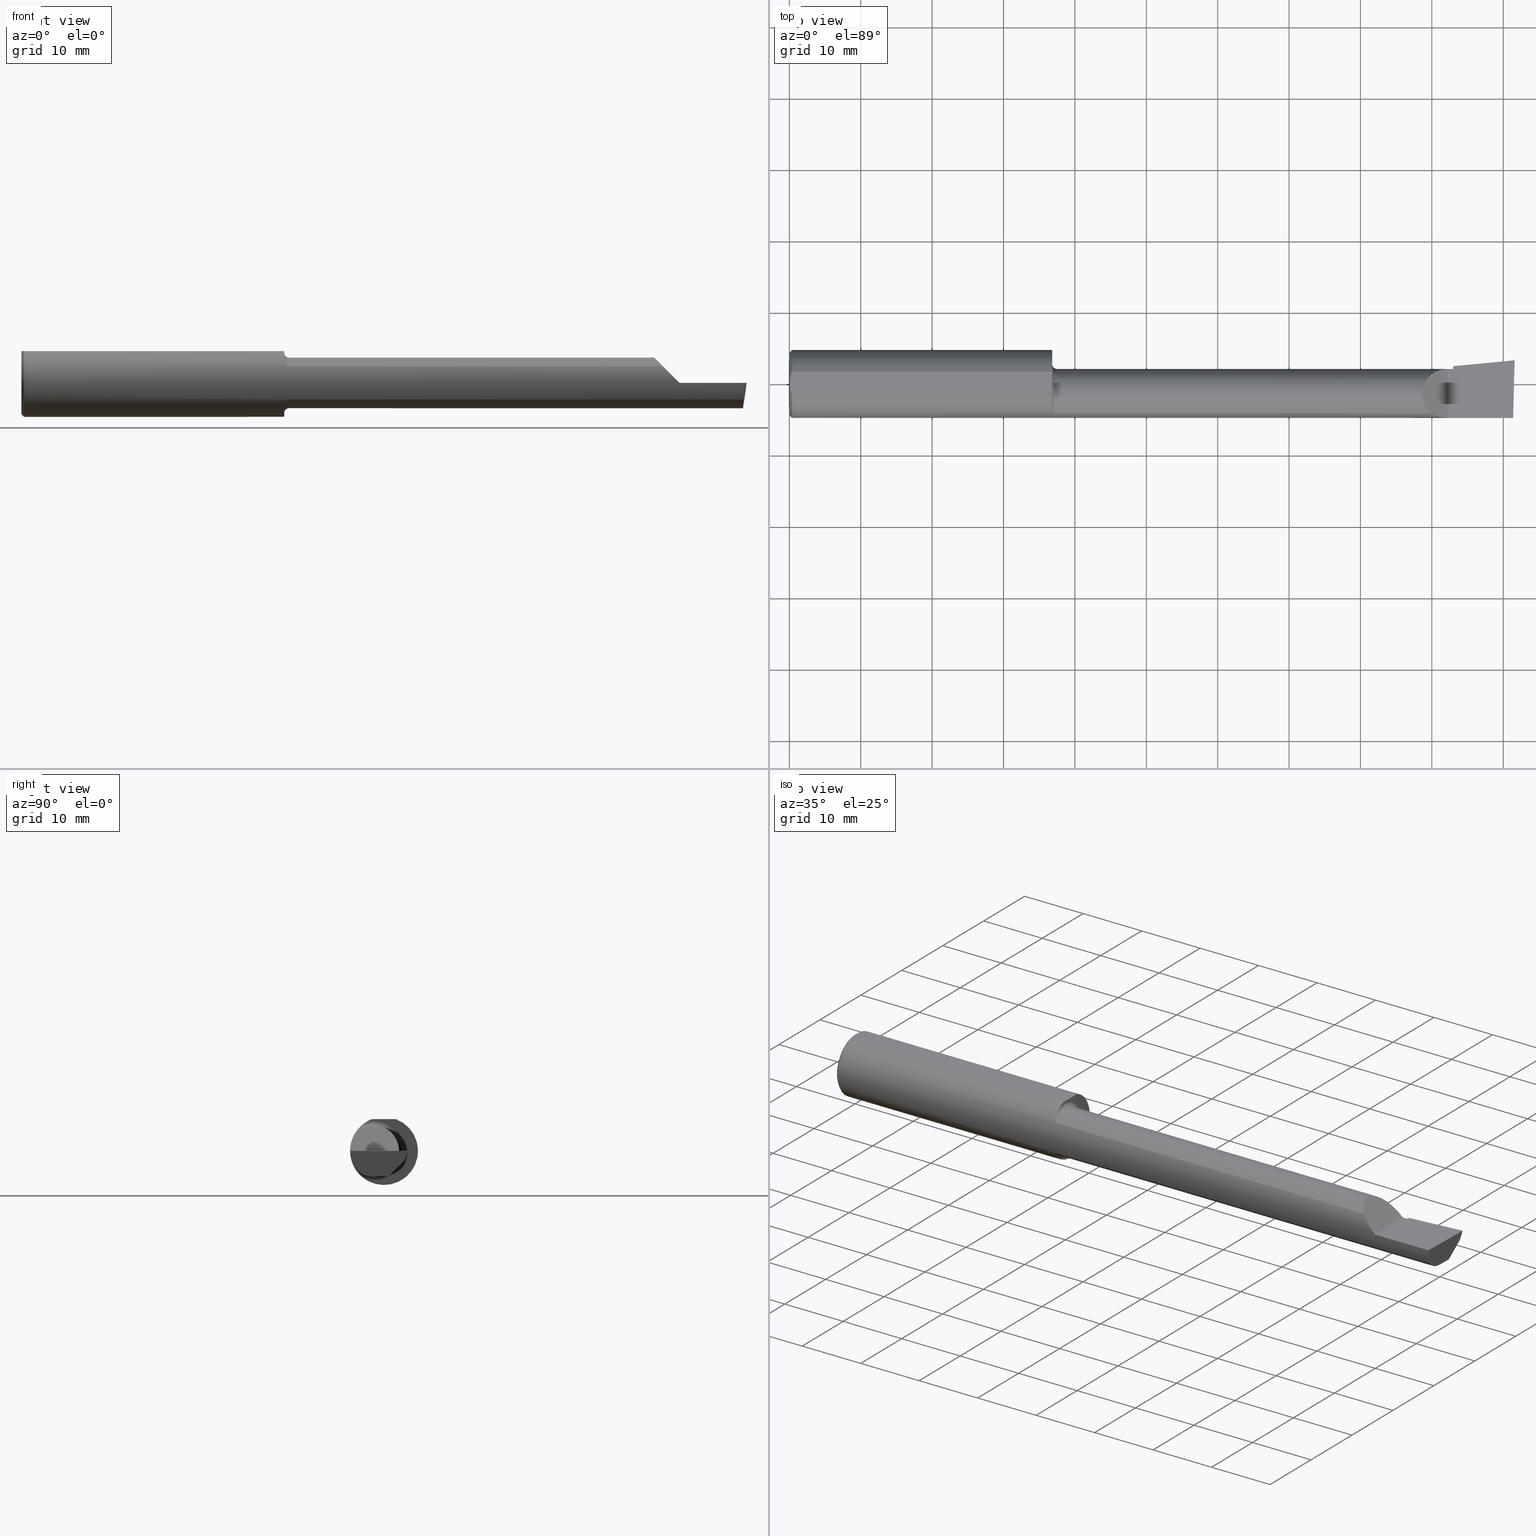
[diagram: canonical four-view strip — front | top / right | iso, engineering-drawing reading convention]
A machine part, canonical four-view strip (front | top / right | iso — engineering-drawing reading convention). The complete STEP part file that produces these views, byte-faithful:
ISO-10303-21;
HEADER;
FILE_DESCRIPTION (( 'STEP AP203' ),
    '1' );
FILE_NAME ('217501-B3202500.STEP',
    '2024-04-26T19:28:02',
    ( '' ),
    ( '' ),
    'SwSTEP 2.0',
    'SolidWorks 2022',
    '' );
FILE_SCHEMA (( 'CONFIG_CONTROL_DESIGN' ));
ENDSEC;

DATA;
#1 = DIRECTION ( 'NONE',  ( 0.000000000000000000, 1.000000000000000000, 0.000000000000000000 ) ) ;
#2 = DIRECTION ( 'NONE',  ( 0.9953961983671800740, 0.09584575252021095004, 2.093702685767902835E-14 ) ) ;
#3 = AXIS2_PLACEMENT_3D ( 'NONE', #585, #342, #493 ) ;
#4 = LINE ( 'NONE', #556, #450 ) ;
#5 = ORIENTED_EDGE ( 'NONE', *, *, #579, .T. ) ;
#6 = DIRECTION ( 'NONE',  ( -0.000000000000000000, 1.000000000000000000, -0.000000000000000000 ) ) ;
#7 = EDGE_CURVE ( 'NONE', #563, #49, #87, .T. ) ;
#8 = LINE ( 'NONE', #465, #642 ) ;
#9 = VERTEX_POINT ( 'NONE', #42 ) ;
#10 = CARTESIAN_POINT ( 'NONE',  ( 3.980058035321255794, 0.02601009779168081751, -0.1400500000000000911 ) ) ;
#11 = EDGE_LOOP ( 'NONE', ( #33, #594, #15 ) ) ;
#12 = CARTESIAN_POINT ( 'NONE',  ( 0.01499999999999997863, -0.06597272163553657975, 0.1753499999999999781 ) ) ;
#13 = AXIS2_PLACEMENT_3D ( 'NONE', #147, #248, #491 ) ;
#14 = DIRECTION ( 'NONE',  ( 0.000000000000000000, -1.438723400918613551E-16, -1.000000000000000000 ) ) ;
#15 = ORIENTED_EDGE ( 'NONE', *, *, #238, .F. ) ;
#16 = DIRECTION ( 'NONE',  ( 1.000000000000000000, 0.000000000000000000, 0.000000000000000000 ) ) ;
#17 = CARTESIAN_POINT ( 'NONE',  ( 3.654666039249971909, 0.01321247140458300766, -0.1209457786867195322 ) ) ;
#18 = ORIENTED_EDGE ( 'NONE', *, *, #404, .F. ) ;
#19 = DIRECTION ( 'NONE',  ( 0.000000000000000000, -1.000000000000000000, 0.000000000000000000 ) ) ;
#20 = VERTEX_POINT ( 'NONE', #494 ) ;
#21 = PERSON_AND_ORGANIZATION_ROLE ( 'creator' ) ;
#22 = CARTESIAN_POINT ( 'NONE',  ( 2.567499999999999893, -0.1635956445993030639, 0.09130436773856169530 ) ) ;
#23 = AXIS2_PLACEMENT_3D ( 'NONE', #399, #215, #1 ) ;
#24 = EDGE_LOOP ( 'NONE', ( #273, #380 ) ) ;
#25 = PERSON_AND_ORGANIZATION ( #90, #307 ) ;
#26 = CARTESIAN_POINT ( 'NONE',  ( 0.008244775919947424855, 0.04453482769755855164, 0.1753499999999999504 ) ) ;
#27 = EDGE_LOOP ( 'NONE', ( #433, #78 ) ) ;
#28 = LENGTH_MEASURE_WITH_UNIT ( LENGTH_MEASURE( 0.02539999999999999897 ), #403 );
#29 = LINE ( 'NONE', #619, #354 ) ;
#30 = DESIGN_CONTEXT ( 'detailed design', #346, 'design' ) ;
#31 = VERTEX_POINT ( 'NONE', #441 ) ;
#32 = LINE ( 'NONE', #239, #567 ) ;
#33 = ORIENTED_EDGE ( 'NONE', *, *, #243, .F. ) ;
#34 = AXIS2_PLACEMENT_3D ( 'NONE', #411, #451, #165 ) ;
#35 = EDGE_CURVE ( 'NONE', #501, #383, #623, .T. ) ;
#36 = LOCAL_TIME ( 12, 28, 2.000000000000000000, #137 ) ;
#37 = CARTESIAN_POINT ( 'NONE',  ( 3.653159806206771165, 0.06582018291673062682, -0.06657020401570151735 ) ) ;
#38 = LINE ( 'NONE', #102, #331 ) ;
#39 = DIRECTION ( 'NONE',  ( -4.268512490100411279E-18, 1.000000000000000000, 0.000000000000000000 ) ) ;
#40 = DIRECTION ( 'NONE',  ( -1.000000000000000000, -4.268512490100411279E-18, -0.000000000000000000 ) ) ;
#41 = LINE ( 'NONE', #388, #487 ) ;
#42 = CARTESIAN_POINT ( 'NONE',  ( 3.659999999999999698, 0.01441505128072246775, -0.1202356058309985848 ) ) ;
#43 = APPROVAL ( #70, 'UNSPECIFIED' ) ;
#44 = CIRCLE ( 'NONE', #401, 0.1400499999999997580 ) ;
#45 = CYLINDRICAL_SURFACE ( 'NONE', #121, 0.1400499999999999801 ) ;
#46 = ADVANCED_FACE ( 'NONE', ( #98 ), #598, .F. ) ;
#47 = DIRECTION ( 'NONE',  ( 1.000000000000000000, 4.268512490100411279E-18, 0.000000000000000000 ) ) ;
#48 = CARTESIAN_POINT ( 'NONE',  ( 3.649559965233992287, 0.06624107758111201505, -0.06577907292278803442 ) ) ;
#49 = VERTEX_POINT ( 'NONE', #536 ) ;
#50 = CARTESIAN_POINT ( 'NONE',  ( 3.538695632261437130, -0.1635956445993028974, 0.09130436773856195898 ) ) ;
#51 = PLANE ( 'NONE',  #34 ) ;
#52 = ADVANCED_FACE ( 'NONE', ( #641 ), #196, .F. ) ;
#53 = AXIS2_PLACEMENT_3D ( 'NONE', #634, #442, #385 ) ;
#54 = APPROVAL_PERSON_ORGANIZATION ( #170, #645, #518 ) ;
#55 = CARTESIAN_POINT ( 'NONE',  ( 3.646634349579650713, 0.09662475785532537165, -6.829619984160658046E-17 ) ) ;
#56 = DIRECTION ( 'NONE',  ( 0.000000000000000000, 1.000000000000000000, -1.438723400918613551E-16 ) ) ;
#57 = ORIENTED_EDGE ( 'NONE', *, *, #359, .F. ) ;
#58 = CARTESIAN_POINT ( 'NONE',  ( 3.659999999999999698, 0.09791172361284120051, -1.402030126304829977E-15 ) ) ;
#59 = CARTESIAN_POINT ( 'NONE',  ( 3.659999999999999698, 0.08255448787293397095, -0.05000000000000000971 ) ) ;
#60 = EDGE_LOOP ( 'NONE', ( #5, #507, #139, #629 ) ) ;
#61 = FACE_OUTER_BOUND ( 'NONE', #466, .T. ) ;
#62 = CARTESIAN_POINT ( 'NONE',  ( 4.000000000000000000, -0.05739999999999999963, -0.1400500000000000633 ) ) ;
#63 = CARTESIAN_POINT ( 'NONE',  ( 3.629999999999999893, -0.2500000000000000555, -1.383850883036508279E-16 ) ) ;
#64 = CIRCLE ( 'NONE', #474, 0.1400500000000002299 ) ;
#65 = CARTESIAN_POINT ( 'NONE',  ( 1.451891754936545098, -0.1247344934163571728, 0.1400506178720497541 ) ) ;
#66 = EDGE_CURVE ( 'NONE', #313, #322, #447, .T. ) ;
#67 = EDGE_LOOP ( 'NONE', ( #267, #513, #276, #603, #520, #213 ) ) ;
#68 = CARTESIAN_POINT ( 'NONE',  ( 3.566758987970638728, -0.1792580844883770730, 0.06324101202936149857 ) ) ;
#69 = ORIENTED_EDGE ( 'NONE', *, *, #524, .F. ) ;
#70 = APPROVAL_STATUS ( 'not_yet_approved' ) ;
#71 = CARTESIAN_POINT ( 'NONE',  ( 3.597861799102314517, -0.1873500000000000165, 0.03213820089768516797 ) ) ;
#72 = ORIENTED_EDGE ( 'NONE', *, *, #648, .F. ) ;
#73 = EDGE_CURVE ( 'NONE', #563, #344, #38, .T. ) ;
#74 = PERSON_AND_ORGANIZATION_ROLE ( 'design_owner' ) ;
#75 = CARTESIAN_POINT ( 'NONE',  ( 0.003000000000000169632, 0.01127363201155560934, 0.1753499999999999781 ) ) ;
#76 = AXIS2_PLACEMENT_3D ( 'NONE', #185, #522, #422 ) ;
#77 = APPROVAL_PERSON_ORGANIZATION ( #129, #639, #529 ) ;
#78 = ORIENTED_EDGE ( 'NONE', *, *, #7, .T. ) ;
#79 = DIRECTION ( 'NONE',  ( -0.1240019227988271994, -0.3022330132596598440, -0.9451342385281468195 ) ) ;
#80 = APPLICATION_CONTEXT ( 'configuration controlled 3d designs of mechanical parts and assemblies' ) ;
#81 = VERTEX_POINT ( 'NONE', #200 ) ;
#82 = CARTESIAN_POINT ( 'NONE',  ( 1.467975941902153192, -0.1612443294219083612, -0.09540922431498155554 ) ) ;
#83 = ADVANCED_FACE ( 'NONE', ( #300 ), #543, .T. ) ;
#84 = ORIENTED_EDGE ( 'NONE', *, *, #630, .T. ) ;
#85 = LINE ( 'NONE', #101, #134 ) ;
#86 = ORIENTED_EDGE ( 'NONE', *, *, #586, .T. ) ;
#87 = CIRCLE ( 'NONE', #462, 0.1723499999999996424 ) ;
#88 = CC_DESIGN_PERSON_AND_ORGANIZATION_ASSIGNMENT ( #431, #74, ( #324 ) ) ;
#89 = CIRCLE ( 'NONE', #23, 0.1873499999999999888 ) ;
#90 = PERSON ( 'UNSPECIFIED', 'UNSPECIFIED', 'UNSPECIFIED', ('UNSPECIFIED'), ('UNSPECIFIED'), ('UNSPECIFIED') ) ;
#91 = LOCAL_TIME ( 12, 28, 2.000000000000000000, #178 ) ;
#92 = DIRECTION ( 'NONE',  ( 4.268512490100411279E-18, -1.000000000000000000, 0.000000000000000000 ) ) ;
#93 = ORIENTED_EDGE ( 'NONE', *, *, #495, .F. ) ;
#94 = CARTESIAN_POINT ( 'NONE',  ( 2.047026079080032090, -0.05740000000000000657, 4.132328855998353457E-20 ) ) ;
#95 = VERTEX_POINT ( 'NONE', #205 ) ;
#96 = ADVANCED_FACE ( 'NONE', ( #395 ), #601, .T. ) ;
#97 = PLANE ( 'NONE',  #53 ) ;
#98 = FACE_OUTER_BOUND ( 'NONE', #423, .T. ) ;
#99 = AXIS2_PLACEMENT_3D ( 'NONE', #62, #209, #356 ) ;
#100 = CONICAL_SURFACE ( 'NONE', #452, 0.1873499999999999888, 0.7853981633974602694 ) ;
#101 = CARTESIAN_POINT ( 'NONE',  ( 3.990039159128060398, -0.2497391662021650749, -1.698694533788567331E-16 ) ) ;
#102 = CARTESIAN_POINT ( 'NONE',  ( 0.01499999999999999424, 2.294375778202566330E-17, 0.1873499999999999888 ) ) ;
#103 = DIRECTION ( 'NONE',  ( -1.000000000000000000, 0.000000000000000000, 8.744705756855574331E-17 ) ) ;
#104 = CARTESIAN_POINT ( 'NONE',  ( 3.650743536083989937, 0.05394922433140202089, -0.08888335082963766398 ) ) ;
#105 = EDGE_CURVE ( 'NONE', #221, #479, #455, .T. ) ;
#106 = CARTESIAN_POINT ( 'NONE',  ( 4.000000000000000000, -0.2500000000000000555, -1.707404996040164512E-16 ) ) ;
#107 = LINE ( 'NONE', #461, #186 ) ;
#108 = ORIENTED_EDGE ( 'NONE', *, *, #148, .T. ) ;
#109 = AXIS2_PLACEMENT_3D ( 'NONE', #288, #190, #338 ) ;
#110 =( BOUNDED_CURVE ( )  B_SPLINE_CURVE ( 3, ( #615, #161, #405, #512 ),
 .UNSPECIFIED., .F., .F. ) 
 B_SPLINE_CURVE_WITH_KNOTS ( ( 4, 4 ),
 ( 3.403716554974003383, 3.413688882750588238 ),
 .UNSPECIFIED. ) 
 CURVE ( )  GEOMETRIC_REPRESENTATION_ITEM ( )  RATIONAL_B_SPLINE_CURVE ( ( 1.000000000000000000, 0.9999917127403961103, 0.9999917127403961103, 1.000000000000000000 ) ) 
 REPRESENTATION_ITEM ( '' )  );
#111 = CC_DESIGN_APPROVAL ( #639, ( #591 ) ) ;
#112 = CARTESIAN_POINT ( 'NONE',  ( 0.000000000000000000, 0.000000000000000000, 0.000000000000000000 ) ) ;
#113 = FACE_OUTER_BOUND ( 'NONE', #235, .T. ) ;
#114 = EDGE_LOOP ( 'NONE', ( #523, #237, #261, #638 ) ) ;
#115 = LINE ( 'NONE', #407, #231 ) ;
#116 = CARTESIAN_POINT ( 'NONE',  ( 0.01128414053810044941, -0.05542038647445821781, 0.1753499999999999781 ) ) ;
#117 = EDGE_CURVE ( 'NONE', #177, #497, #4, .T. ) ;
#118 = DIRECTION ( 'NONE',  ( 0.06658005426110566449, -0.6914603011188222847, -0.7193398003386548556 ) ) ;
#119 = ORIENTED_EDGE ( 'NONE', *, *, #330, .T. ) ;
#120 = CALENDAR_DATE ( 2024, 26, 4 ) ;
#121 = AXIS2_PLACEMENT_3D ( 'NONE', #149, #535, #92 ) ;
#122 = DIRECTION ( 'NONE',  ( -1.000000000000000000, -4.268512490100411279E-18, -0.000000000000000000 ) ) ;
#123 = LOCAL_TIME ( 12, 28, 2.000000000000000000, #428 ) ;
#124 = MANIFOLD_SOLID_BREP ( 'Extrude7', #555 ) ;
#125 = PERSON_AND_ORGANIZATION ( #90, #307 ) ;
#126 = PLANE ( 'NONE',  #76 ) ;
#127 = VERTEX_POINT ( 'NONE', #310 ) ;
#128 = EDGE_CURVE ( 'NONE', #49, #456, #8, .T. ) ;
#129 = PERSON_AND_ORGANIZATION ( #90, #307 ) ;
#130 = DIRECTION ( 'NONE',  ( 4.268512490100411279E-18, -1.000000000000000000, 1.438723400918613551E-16 ) ) ;
#131 = ORIENTED_EDGE ( 'NONE', *, *, #351, .F. ) ;
#132 = DATE_AND_TIME ( #269, #123 ) ;
#133 = CARTESIAN_POINT ( 'NONE',  ( 1.450384441902395238, -0.1115101367984843439, -0.1507946173152220348 ) ) ;
#134 = VECTOR ( 'NONE', #499, 39.37007874015748854 ) ;
#135 = CC_DESIGN_APPROVAL ( #645, ( #621 ) ) ;
#136 = VERTEX_POINT ( 'NONE', #169 ) ;
#137 = COORDINATED_UNIVERSAL_TIME_OFFSET ( 8, 0, .BEHIND. ) ;
#138 = LINE ( 'NONE', #234, #633 ) ;
#139 = ORIENTED_EDGE ( 'NONE', *, *, #359, .T. ) ;
#140 = CARTESIAN_POINT ( 'NONE',  ( 3.659999999999999698, -0.05739999999999999963, 0.000000000000000000 ) ) ;
#141 = ORIENTED_EDGE ( 'NONE', *, *, #128, .F. ) ;
#142 = DIRECTION ( 'NONE',  ( -0.1053106618240638032, -0.6976485211320200275, -0.7086580314005359593 ) ) ;
#143 = DIRECTION ( 'NONE',  ( 0.000000000000000000, 0.000000000000000000, 1.000000000000000000 ) ) ;
#144 = AXIS2_PLACEMENT_3D ( 'NONE', #251, #2, #398 ) ;
#145 = AXIS2_PLACEMENT_3D ( 'NONE', #112, #265, #460 ) ;
#146 = LINE ( 'NONE', #94, #412 ) ;
#147 = CARTESIAN_POINT ( 'NONE',  ( 3.629999999999999893, -0.2500000000000000555, -1.383850883036508279E-16 ) ) ;
#148 = EDGE_CURVE ( 'NONE', #127, #253, #492, .T. ) ;
#149 = CARTESIAN_POINT ( 'NONE',  ( 0.000000000000000000, -0.05740000000000001351, 0.000000000000000000 ) ) ;
#150 = CARTESIAN_POINT ( 'NONE',  ( 3.659999999999999698, 0.09791172361283663472, 0.000000000000000000 ) ) ;
#151 = CARTESIAN_POINT ( 'NONE',  ( 3.659999999999999698, -0.004807985797372692910, -0.1400500000000000633 ) ) ;
#152 = ORIENTED_EDGE ( 'NONE', *, *, #470, .F. ) ;
#153 = VECTOR ( 'NONE', #608, 39.37007874015748854 ) ;
#154 = CARTESIAN_POINT ( 'NONE',  ( 3.421229036482944075, -0.06260079402492414735, 0.2087709635170538203 ) ) ;
#155 = ORIENTED_EDGE ( 'NONE', *, *, #330, .F. ) ;
#156 =( BOUNDED_CURVE ( )  B_SPLINE_CURVE ( 3, ( #48, #37, #637, #192 ),
 .UNSPECIFIED., .F., .T. ) 
 B_SPLINE_CURVE_WITH_KNOTS ( ( 4, 4 ),
 ( 2.860273215522871393, 2.879468752205587290 ),
 .UNSPECIFIED. ) 
 CURVE ( )  GEOMETRIC_REPRESENTATION_ITEM ( )  RATIONAL_B_SPLINE_CURVE ( ( 1.000000000000000000, 0.9999692945166647196, 0.9999692945166647196, 1.000000000000000000 ) ) 
 REPRESENTATION_ITEM ( '' )  );
#157 = EDGE_CURVE ( 'NONE', #127, #253, #562, .T. ) ;
#158 = CARTESIAN_POINT ( 'NONE',  ( 1.450000000000000178, -0.1045012500212958440, 0.1557348687830031608 ) ) ;
#159 = ORIENTED_EDGE ( 'NONE', *, *, #73, .F. ) ;
#160 = DIRECTION ( 'NONE',  ( 1.000000000000000000, 0.000000000000000000, 0.000000000000000000 ) ) ;
#161 = CARTESIAN_POINT ( 'NONE',  ( 3.658254417281638915, 0.01401537333401193727, -0.1204743278970653309 ) ) ;
#162 = ORIENTED_EDGE ( 'NONE', *, *, #217, .F. ) ;
#163 = CONICAL_SURFACE ( 'NONE', #620, 0.1873499999999999888, 0.7853981633974602694 ) ;
#164 = CARTESIAN_POINT ( 'NONE',  ( 3.981080296960509468, -0.1635956445993030639, -0.09130436773856169530 ) ) ;
#165 = DIRECTION ( 'NONE',  ( 0.000000000000000000, 0.000000000000000000, -1.000000000000000000 ) ) ;
#166 = ORIENTED_EDGE ( 'NONE', *, *, #511, .F. ) ;
#167 = EDGE_CURVE ( 'NONE', #482, #285, #305, .T. ) ;
#168 = LINE ( 'NONE', #360, #578 ) ;
#169 = CARTESIAN_POINT ( 'NONE',  ( 3.977873865042411250, -0.05739999999999999963, -0.1400500000000000633 ) ) ;
#170 = PERSON_AND_ORGANIZATION ( #90, #307 ) ;
#171 = CARTESIAN_POINT ( 'NONE',  ( 3.629999999999999893, -0.1873499999999999888, -1.383850883036508279E-16 ) ) ;
#172 = CIRCLE ( 'NONE', #516, 0.1873499999999999888 ) ;
#173 = CALENDAR_DATE ( 2024, 26, 4 ) ;
#174 = PRODUCT_DEFINITION_FORMATION_WITH_SPECIFIED_SOURCE ( 'ANY', '', #324, .NOT_KNOWN. ) ;
#175 = ADVANCED_FACE ( 'NONE', ( #605 ), #51, .F. ) ;
#176 = DIRECTION ( 'NONE',  ( -1.000000000000000000, 5.691349986800549142E-18, -0.000000000000000000 ) ) ;
#177 = VERTEX_POINT ( 'NONE', #304 ) ;
#178 = COORDINATED_UNIVERSAL_TIME_OFFSET ( 8, 0, .BEHIND. ) ;
#179 = CARTESIAN_POINT ( 'NONE',  ( 3.629999999999999893, 0.08264999999999983471, -1.383850883036508279E-16 ) ) ;
#180 = ORIENTED_EDGE ( 'NONE', *, *, #541, .T. ) ;
#181 = PERSON_AND_ORGANIZATION ( #90, #307 ) ;
#182 = FACE_OUTER_BOUND ( 'NONE', #560, .T. ) ;
#183 = ORIENTED_EDGE ( 'NONE', *, *, #579, .F. ) ;
#184 = CARTESIAN_POINT ( 'NONE',  ( 0.000000000000000000, 0.000000000000000000, 0.000000000000000000 ) ) ;
#185 = CARTESIAN_POINT ( 'NONE',  ( 3.648099498941296481, 0.08140859995291782614, -0.05000000000000002359 ) ) ;
#186 = VECTOR ( 'NONE', #505, 39.37007874015748143 ) ;
#187 = APPROVAL_PERSON_ORGANIZATION ( #125, #43, #580 ) ;
#188 = ORIENTED_EDGE ( 'NONE', *, *, #73, .T. ) ;
#189 = ADVANCED_FACE ( 'NONE', ( #559 ), #266, .F. ) ;
#190 = DIRECTION ( 'NONE',  ( -1.000000000000000000, -4.268512490100411279E-18, 0.000000000000000000 ) ) ;
#191 = ORIENTED_EDGE ( 'NONE', *, *, #378, .T. ) ;
#192 = CARTESIAN_POINT ( 'NONE',  ( 3.659999999999999698, 0.06495571228477967085, -0.06814016562413281741 ) ) ;
#193 = VERTEX_POINT ( 'NONE', #551 ) ;
#194 = CARTESIAN_POINT ( 'NONE',  ( 1.450000000000000178, 0.06597272163553663527, 0.1753499999999999781 ) ) ;
#195 = EDGE_CURVE ( 'NONE', #9, #253, #110, .T. ) ;
#196 = PLANE ( 'NONE',  #13 ) ;
#197 = AXIS2_PLACEMENT_3D ( 'NONE', #55, #204, #254 ) ;
#198 = DIMENSIONAL_EXPONENTS ( 1.000000000000000000, 0.000000000000000000, 0.000000000000000000, 0.000000000000000000, 0.000000000000000000, 0.000000000000000000, 0.000000000000000000 ) ;
#199 = CARTESIAN_POINT ( 'NONE',  ( 3.659999999999999698, 0.06495571228477967085, -0.06814016562413281741 ) ) ;
#200 = CARTESIAN_POINT ( 'NONE',  ( 1.450000000000000178, -0.06597272163553666302, 0.1753499999999999781 ) ) ;
#201 = DIRECTION ( 'NONE',  ( -1.000000000000000000, -0.000000000000000000, -0.000000000000000000 ) ) ;
#202 = DIRECTION ( 'NONE',  ( 4.268512490100411279E-18, -1.000000000000000000, 0.000000000000000000 ) ) ;
#203 = EDGE_CURVE ( 'NONE', #430, #406, #107, .T. ) ;
#204 = DIRECTION ( 'NONE',  ( 0.09165774897393337561, -0.9519021185660612172, 0.2923717047227311627 ) ) ;
#205 = CARTESIAN_POINT ( 'NONE',  ( 3.538695632261437130, -0.1635956445993028974, 0.09130436773856195898 ) ) ;
#206 = VECTOR ( 'NONE', #47, 39.37007874015748143 ) ;
#207 = CC_DESIGN_APPROVAL ( #43, ( #174 ) ) ;
#208 = ADVANCED_FACE ( 'NONE', ( #113 ), #458, .F. ) ;
#209 = DIRECTION ( 'NONE',  ( -4.858719700838190352E-34, -8.537024980200823790E-17, 1.000000000000000000 ) ) ;
#210 = ORIENTED_EDGE ( 'NONE', *, *, #283, .F. ) ;
#211 = PLANE ( 'NONE',  #489 ) ;
#212 = CARTESIAN_POINT ( 'NONE',  ( 1.453025912205683667, -0.1310442973014118717, 0.1341609063345039488 ) ) ;
#213 = ORIENTED_EDGE ( 'NONE', *, *, #521, .F. ) ;
#214 = CC_DESIGN_PERSON_AND_ORGANIZATION_ASSIGNMENT ( #614, #21, ( #174 ) ) ;
#215 = DIRECTION ( 'NONE',  ( 1.000000000000000000, 4.268512490100411279E-18, 0.000000000000000000 ) ) ;
#216 = DIRECTION ( 'NONE',  ( 0.000000000000000000, 1.000000000000000000, 8.537024980200821325E-17 ) ) ;
#217 = EDGE_CURVE ( 'NONE', #81, #482, #172, .T. ) ;
#218 = ORIENTED_EDGE ( 'NONE', *, *, #157, .F. ) ;
#219 = FACE_OUTER_BOUND ( 'NONE', #571, .T. ) ;
#220 = DIRECTION ( 'NONE',  ( 1.000000000000000000, 4.268512490100411279E-18, 0.000000000000000000 ) ) ;
#221 = VERTEX_POINT ( 'NONE', #59 ) ;
#222 = MECHANICAL_CONTEXT ( 'NONE', #80, 'mechanical' ) ;
#223 = CARTESIAN_POINT ( 'NONE',  ( 1.466855994529494112, -0.1603175578889972364, 0.09696363432848399688 ) ) ;
#224 = ORIENTED_EDGE ( 'NONE', *, *, #308, .F. ) ;
#225 = APPROVAL_DATE_TIME ( #132, #639 ) ;
#226 = CARTESIAN_POINT ( 'NONE',  ( 1.458068207442170250, -0.1478915270140213900, -0.1153063024254919050 ) ) ;
#227 = ORIENTED_EDGE ( 'NONE', *, *, #203, .F. ) ;
#228 = AXIS2_PLACEMENT_3D ( 'NONE', #490, #589, #547 ) ;
#229 = PERSON_AND_ORGANIZATION_ROLE ( 'design_supplier' ) ;
#230 = EDGE_CURVE ( 'NONE', #459, #95, #595, .T. ) ;
#231 = VECTOR ( 'NONE', #457, 39.37007874015748143 ) ;
#232 = CARTESIAN_POINT ( 'NONE',  ( 3.654666039249971909, 0.01321247140458300766, -0.1209457786867195322 ) ) ;
#233 = ORIENTED_EDGE ( 'NONE', *, *, #167, .T. ) ;
#234 = CARTESIAN_POINT ( 'NONE',  ( 3.993291301099662238, 0.1142987190042920043, -0.05113324764279862655 ) ) ;
#235 = EDGE_LOOP ( 'NONE', ( #439, #227, #647, #72, #517 ) ) ;
#236 = CARTESIAN_POINT ( 'NONE',  ( 3.538695632261437130, -0.1635956445993028974, 0.09130436773856195898 ) ) ;
#237 = ORIENTED_EDGE ( 'NONE', *, *, #299, .T. ) ;
#238 = EDGE_CURVE ( 'NONE', #9, #177, #546, .T. ) ;
#239 = CARTESIAN_POINT ( 'NONE',  ( 4.000000000000000000, -0.05739999999999999963, -0.1400500000000000633 ) ) ;
#240 = ORIENTED_EDGE ( 'NONE', *, *, #404, .T. ) ;
#241 = CARTESIAN_POINT ( 'NONE',  ( 3.981080296960509468, -0.1635956445993030639, -0.09130436773856169530 ) ) ;
#242 = DIRECTION ( 'NONE',  ( -1.000000000000000000, -4.268512490100411279E-18, 0.000000000000000000 ) ) ;
#243 = EDGE_CURVE ( 'NONE', #497, #9, #575, .T. ) ;
#244 = DIRECTION ( 'NONE',  ( -1.000000000000000000, -0.000000000000000000, -0.000000000000000000 ) ) ;
#245 = CARTESIAN_POINT ( 'NONE',  ( 1.474999999999999867, -0.05740000000000001351, 0.000000000000000000 ) ) ;
#246 =( BOUNDED_CURVE ( )  B_SPLINE_CURVE ( 3, ( #50, #154, #611, #561 ),
 .UNSPECIFIED., .F., .F. ) 
 B_SPLINE_CURVE_WITH_KNOTS ( ( 4, 4 ),
 ( 5.422530673488459740, 7.853981633974483678 ),
 .UNSPECIFIED. ) 
 CURVE ( )  GEOMETRIC_REPRESENTATION_ITEM ( )  RATIONAL_B_SPLINE_CURVE ( ( 1.000000000000000000, 0.5651045289226863666, 0.5651045289226863666, 1.000000000000000000 ) ) 
 REPRESENTATION_ITEM ( '' )  );
#247 = DIRECTION ( 'NONE',  ( -1.000000000000000000, -0.000000000000000000, -0.000000000000000000 ) ) ;
#248 = DIRECTION ( 'NONE',  ( -0.7071067811865443531, 0.000000000000000000, -0.7071067811865507924 ) ) ;
#249 = VECTOR ( 'NONE', #244, 39.37007874015748143 ) ;
#250 = CARTESIAN_POINT ( 'NONE',  ( 3.993439983562941720, 0.1146611065212079783, -0.05000000000000002359 ) ) ;
#251 = CARTESIAN_POINT ( 'NONE',  ( 3.652201917153905963, 0.03880335782617686663, -0.1900000000000001132 ) ) ;
#252 = DIRECTION ( 'NONE',  ( 0.000000000000000000, -1.000000000000000000, 0.000000000000000000 ) ) ;
#253 = VERTEX_POINT ( 'NONE', #232 ) ;
#254 = DIRECTION ( 'NONE',  ( 0.000000000000000000, -0.2936076258024069019, -0.9559260233253794592 ) ) ;
#255 = CARTESIAN_POINT ( 'NONE',  ( 1.468001859868116821, -0.1612625562479374497, 0.09537826053888119604 ) ) ;
#256 = CIRCLE ( 'NONE', #228, 0.1650499999999997802 ) ;
#257 = ORIENTED_EDGE ( 'NONE', *, *, #618, .T. ) ;
#258 = DIRECTION ( 'NONE',  ( 0.9953961983671800740, 0.09584575252021031166, 1.093478026937438279E-17 ) ) ;
#259 = DIRECTION ( 'NONE',  ( 0.000000000000000000, 1.000000000000000000, 0.000000000000000000 ) ) ;
#260 = CC_DESIGN_PERSON_AND_ORGANIZATION_ASSIGNMENT ( #181, #574, ( #621 ) ) ;
#261 = ORIENTED_EDGE ( 'NONE', *, *, #217, .T. ) ;
#262 = DIRECTION ( 'NONE',  ( 0.000000000000000000, 0.000000000000000000, -1.000000000000000000 ) ) ;
#263 = CARTESIAN_POINT ( 'NONE',  ( 1.450000000000000178, -0.09715400696864165409, 0.1601908905959921192 ) ) ;
#264 = ORIENTED_EDGE ( 'NONE', *, *, #345, .F. ) ;
#265 = DIRECTION ( 'NONE',  ( -1.000000000000000000, -0.000000000000000000, -0.000000000000000000 ) ) ;
#266 = PLANE ( 'NONE',  #99 ) ;
#267 = ORIENTED_EDGE ( 'NONE', *, *, #396, .F. ) ;
#268 = VECTOR ( 'NONE', #627, 39.37007874015748143 ) ;
#269 = CALENDAR_DATE ( 2024, 26, 4 ) ;
#270 = CARTESIAN_POINT ( 'NONE',  ( 1.462204638458736827, -0.1550630761760526943, 0.1052254855377557363 ) ) ;
#271 = DATE_AND_TIME ( #464, #343 ) ;
#272 = DIRECTION ( 'NONE',  ( 0.000000000000000000, -1.000000000000000000, 0.000000000000000000 ) ) ;
#273 = ORIENTED_EDGE ( 'NONE', *, *, #157, .T. ) ;
#274 = DATE_AND_TIME ( #335, #36 ) ;
#275 = DIRECTION ( 'NONE',  ( -1.000000000000000000, -4.268512490100411279E-18, -0.000000000000000000 ) ) ;
#276 = ORIENTED_EDGE ( 'NONE', *, *, #448, .F. ) ;
#277 = VECTOR ( 'NONE', #118, 39.37007874015748143 ) ;
#278 = APPROVAL_DATE_TIME ( #274, #43 ) ;
#279 = CARTESIAN_POINT ( 'NONE',  ( 0.004115035183746292881, 0.02255629470626744487, 0.1753499999999999781 ) ) ;
#280 = ORIENTED_EDGE ( 'NONE', *, *, #345, .T. ) ;
#281 = CC_DESIGN_DATE_AND_TIME_ASSIGNMENT ( #271, #332, ( #621 ) ) ;
#282 = APPLICATION_PROTOCOL_DEFINITION ( 'international standard', 'config_control_design', 1994, #346 ) ;
#283 = EDGE_CURVE ( 'NONE', #285, #95, #426, .T. ) ;
#284 = CARTESIAN_POINT ( 'NONE',  ( 1.450000000000000178, 0.2373500000000000332, 0.1753499999999999504 ) ) ;
#285 = VERTEX_POINT ( 'NONE', #321 ) ;
#286 = DIRECTION ( 'NONE',  ( -0.02617694830779360160, -0.9996573249755593693, -8.492548844487341413E-17 ) ) ;
#287 = ORIENTED_EDGE ( 'NONE', *, *, #425, .F. ) ;
#288 = CARTESIAN_POINT ( 'NONE',  ( 3.659999999999999698, 0.09791172361283663472, 0.000000000000000000 ) ) ;
#289 = CIRCLE ( 'NONE', #588, 0.1873499999999999888 ) ;
#290 = CARTESIAN_POINT ( 'NONE',  ( 3.991672876940992154, -0.1873499999999999888, -1.700367819150454743E-16 ) ) ;
#291 = ADVANCED_FACE ( 'NONE', ( #432 ), #126, .F. ) ;
#292 = ORIENTED_EDGE ( 'NONE', *, *, #378, .F. ) ;
#293 = CARTESIAN_POINT ( 'NONE',  ( 1.450000000000000178, 0.1076499999999997736, 0.000000000000000000 ) ) ;
#294 = CARTESIAN_POINT ( 'NONE',  ( 0.000000000000000000, 0.000000000000000000, 0.000000000000000000 ) ) ;
#295 = CARTESIAN_POINT ( 'NONE',  ( 3.991672876940992154, -0.1873499999999999888, -1.700367819150454743E-16 ) ) ;
#296 = ORIENTED_EDGE ( 'NONE', *, *, #448, .T. ) ;
#297 = AXIS2_PLACEMENT_3D ( 'NONE', #245, #40, #202 ) ;
#298 = DIRECTION ( 'NONE',  ( 0.000000000000000000, 0.000000000000000000, 1.000000000000000000 ) ) ;
#299 = EDGE_CURVE ( 'NONE', #406, #81, #624, .T. ) ;
#300 = FACE_OUTER_BOUND ( 'NONE', #24, .T. ) ;
#301 = CYLINDRICAL_SURFACE ( 'NONE', #145, 0.1873499999999999888 ) ;
#302 = CARTESIAN_POINT ( 'NONE',  ( 1.456142321956750862, -0.1426151417460934934, 0.1217894822571228691 ) ) ;
#303 = DIRECTION ( 'NONE',  ( -1.000000000000000000, -4.268512490100411279E-18, -0.000000000000000000 ) ) ;
#304 = CARTESIAN_POINT ( 'NONE',  ( 3.659999999999999698, -0.05739999999999999963, -0.1400500000000000633 ) ) ;
#305 = B_SPLINE_CURVE_WITH_KNOTS ( 'NONE', 3,
 ( #263, #158, #316, #65, #212, #302, #358, #270, #408, #223, #255, #420, #361, #312 ),
 .UNSPECIFIED., .F., .F.,
 ( 4, 2, 2, 2, 2, 2, 4 ),
 ( 0.0002471551878304273061, 0.0008987327522055692762, 0.001550310316580711355, 0.002201887880955853000, 0.002527676663143422955, 0.002690571054237208149, 0.002853465445330993343 ),
 .UNSPECIFIED. ) ;
#306 = VECTOR ( 'NONE', #6, 39.37007874015748143 ) ;
#307 = ORGANIZATION ( 'UNSPECIFIED', 'UNSPECIFIED', '' ) ;
#308 = EDGE_CURVE ( 'NONE', #285, #527, #44, .T. ) ;
#309 = LINE ( 'NONE', #552, #600 ) ;
#310 = CARTESIAN_POINT ( 'NONE',  ( 3.649559965233992287, 0.06624107758111201505, -0.06577907292278803442 ) ) ;
#311 = DIRECTION ( 'NONE',  ( -1.000000000000000000, -0.000000000000000000, -0.000000000000000000 ) ) ;
#312 = CARTESIAN_POINT ( 'NONE',  ( 1.474999999999999867, -0.1635956445993032859, 0.09130436773856114019 ) ) ;
#313 = VERTEX_POINT ( 'NONE', #179 ) ;
#314 = CARTESIAN_POINT ( 'NONE',  ( 0.004093196532652216939, -0.02240707710020816909, 0.1753499999999999504 ) ) ;
#315 = ADVANCED_FACE ( 'NONE', ( #182 ), #163, .T. ) ;
#316 = CARTESIAN_POINT ( 'NONE',  ( 1.450383728133729955, -0.1114837668894155670, 0.1508119329971093214 ) ) ;
#317 = ORIENTED_EDGE ( 'NONE', *, *, #238, .T. ) ;
#318 = VECTOR ( 'NONE', #247, 39.37007874015748143 ) ;
#319 = AXIS2_PLACEMENT_3D ( 'NONE', #558, #311, #510 ) ;
#320 = DATE_AND_TIME ( #120, #506 ) ;
#321 = CARTESIAN_POINT ( 'NONE',  ( 1.474999999999999867, -0.1635956445993032859, 0.09130436773856114019 ) ) ;
#322 = VERTEX_POINT ( 'NONE', #572 ) ;
#323 = APPLICATION_PROTOCOL_DEFINITION ( 'international standard', 'config_control_design', 1994, #80 ) ;
#324 = PRODUCT ( '217501-B3202500', '217501-B3202500', '', ( #222 ) ) ;
#325 = CARTESIAN_POINT ( 'NONE',  ( 1.474999999999999867, -0.05740000000000000657, 0.000000000000000000 ) ) ;
#326 = ORIENTED_EDGE ( 'NONE', *, *, #586, .F. ) ;
#327 = DATE_TIME_ROLE ( 'creation_date' ) ;
#328 = CARTESIAN_POINT ( 'NONE',  ( 1.470881499230869860, -0.1628722075910995493, -0.09260290410947796813 ) ) ;
#329 = ORIENTED_EDGE ( 'NONE', *, *, #565, .F. ) ;
#330 = EDGE_CURVE ( 'NONE', #527, #31, #628, .T. ) ;
#331 = VECTOR ( 'NONE', #445, 39.37007874015748143 ) ;
#332 = DATE_TIME_ROLE ( 'classification_date' ) ;
#333 = CARTESIAN_POINT ( 'NONE',  ( 0.01125230581755086272, 0.05532998191409922023, 0.1753500000000000059 ) ) ;
#334 = ORIENTED_EDGE ( 'NONE', *, *, #283, .T. ) ;
#335 = CALENDAR_DATE ( 2024, 26, 4 ) ;
#336 = CARTESIAN_POINT ( 'NONE',  ( 1.474999999999999867, -0.1635956445993035080, -0.09130436773856089039 ) ) ;
#337 = ORIENTED_EDGE ( 'NONE', *, *, #339, .T. ) ;
#338 = DIRECTION ( 'NONE',  ( 4.268512490100411279E-18, -1.000000000000000000, 0.000000000000000000 ) ) ;
#339 = EDGE_CURVE ( 'NONE', #344, #430, #393, .T. ) ;
#340 = EDGE_LOOP ( 'NONE', ( #152, #18, #463, #587 ) ) ;
#341 = AXIS2_PLACEMENT_3D ( 'NONE', #566, #122, #19 ) ;
#342 = DIRECTION ( 'NONE',  ( -1.000000000000000000, -0.000000000000000000, -0.000000000000000000 ) ) ;
#343 = LOCAL_TIME ( 12, 28, 2.000000000000000000, #424 ) ;
#344 = VERTEX_POINT ( 'NONE', #484 ) ;
#345 = EDGE_CURVE ( 'NONE', #193, #479, #138, .T. ) ;
#346 = APPLICATION_CONTEXT ( 'configuration controlled 3d designs of mechanical parts and assemblies' ) ;
#347 = LINE ( 'NONE', #539, #528 ) ;
#348 = CARTESIAN_POINT ( 'NONE',  ( 3.981080296960509468, -0.1635956445993030639, -0.09130436773856169530 ) ) ;
#349 = CARTESIAN_POINT ( 'NONE',  ( 0.01499999999999999424, 0.000000000000000000, -0.1873499999999999888 ) ) ;
#350 = DIRECTION ( 'NONE',  ( 4.268512490100411279E-18, -1.000000000000000000, 0.000000000000000000 ) ) ;
#351 = EDGE_CURVE ( 'NONE', #625, #136, #29, .T. ) ;
#352 = CARTESIAN_POINT ( 'NONE',  ( 3.629999999999999893, -0.1873499999999999888, -1.383850883036508279E-16 ) ) ;
#353 = CARTESIAN_POINT ( 'NONE',  ( 3.987725449370725261, -0.1873499999999999610, -0.03213820089768520960 ) ) ;
#354 = VECTOR ( 'NONE', #286, 39.37007874015748854 ) ;
#355 = DIRECTION ( 'NONE',  ( -1.253267817926301575E-18, 0.2936076258024069019, 0.9559260233253794592 ) ) ;
#356 = DIRECTION ( 'NONE',  ( 0.000000000000000000, -1.000000000000000000, -8.537024980200823790E-17 ) ) ;
#357 = CARTESIAN_POINT ( 'NONE',  ( 3.976787929832031221, -0.09887019258091184204, -0.1400500000000000078 ) ) ;
#358 = CARTESIAN_POINT ( 'NONE',  ( 1.458072954143140088, -0.1479074971576202768, 0.1152872342625226587 ) ) ;
#359 = EDGE_CURVE ( 'NONE', #136, #177, #32, .T. ) ;
#360 = CARTESIAN_POINT ( 'NONE',  ( 2.567499999999999893, -0.1635956445993030639, -0.09130436773856169530 ) ) ;
#361 = CARTESIAN_POINT ( 'NONE',  ( 1.472800914500664859, -0.1635956445997551467, 0.09130436773775187087 ) ) ;
#362 = VECTOR ( 'NONE', #371, 39.37007874015748854 ) ;
#363 = ORIENTED_EDGE ( 'NONE', *, *, #128, .T. ) ;
#364 = CC_DESIGN_DATE_AND_TIME_ASSIGNMENT ( #569, #327, ( #591 ) ) ;
#365 = CARTESIAN_POINT ( 'NONE',  ( 3.977873865042411250, -0.05739999999999999963, -0.1400500000000000633 ) ) ;
#366 = ORIENTED_EDGE ( 'NONE', *, *, #630, .F. ) ;
#367 = CARTESIAN_POINT ( 'NONE',  ( 3.977925907309857845, -0.1365595166907235813, -0.1227499502647107499 ) ) ;
#368 = DIRECTION ( 'NONE',  ( 0.7071067811865390240, 0.000000000000000000, -0.7071067811865560104 ) ) ;
#369 = APPROVAL_STATUS ( 'not_yet_approved' ) ;
#370 = EDGE_CURVE ( 'NONE', #81, #485, #374, .T. ) ;
#371 = DIRECTION ( 'NONE',  ( -2.972230601656783191E-18, 0.6963153109074925462, 0.7177360153954946975 ) ) ;
#372 = AXIS2_PLACEMENT_3D ( 'NONE', #415, #14, #56 ) ;
#373 = APPROVAL_STATUS ( 'not_yet_approved' ) ;
#374 = LINE ( 'NONE', #570, #318 ) ;
#375 = ORIENTED_EDGE ( 'NONE', *, *, #35, .T. ) ;
#376 = CARTESIAN_POINT ( 'NONE',  ( 0.01499999999999999424, 0.000000000000000000, 0.000000000000000000 ) ) ;
#377 = ORIENTED_EDGE ( 'NONE', *, *, #648, .T. ) ;
#378 = EDGE_CURVE ( 'NONE', #479, #625, #347, .T. ) ;
#379 = CARTESIAN_POINT ( 'NONE',  ( 1.450000000000000178, -0.09715400696864165409, -0.1601908905959921192 ) ) ;
#380 = ORIENTED_EDGE ( 'NONE', *, *, #148, .F. ) ;
#381 = AXIS2_PLACEMENT_3D ( 'NONE', #150, #242, #350 ) ;
#382 = CARTESIAN_POINT ( 'NONE',  ( 1.466814909379088760, -0.1602818635245161771, -0.09702252612905236384 ) ) ;
#383 = VERTEX_POINT ( 'NONE', #295 ) ;
#384 = ADVANCED_FACE ( 'NONE', ( #397 ), #97, .F. ) ;
#385 = DIRECTION ( 'NONE',  ( 0.1219104985251946854, 0.000000000000000000, 0.9925410975618785825 ) ) ;
#386 = ORIENTED_EDGE ( 'NONE', *, *, #243, .T. ) ;
#387 = ADVANCED_FACE ( 'NONE', ( #500 ), #643, .T. ) ;
#388 = CARTESIAN_POINT ( 'NONE',  ( 3.659999999999999698, 0.1149890494305082084, -0.01656765604781321524 ) ) ;
#389 = EDGE_LOOP ( 'NONE', ( #257, #131, #292, #264, #540, #584 ) ) ;
#390 = VECTOR ( 'NONE', #355, 39.37007874015748143 ) ;
#391 = CARTESIAN_POINT ( 'NONE',  ( 1.565719721143680372E-32, -0.1873499999999999610, 1.790477306702064235E-16 ) ) ;
#392 = EDGE_LOOP ( 'NONE', ( #326, #416, #409 ) ) ;
#393 = B_SPLINE_CURVE_WITH_KNOTS ( 'NONE', 3,
 ( #477, #75, #279, #26, #333, #481 ),
 .UNSPECIFIED., .F., .F.,
 ( 4, 2, 4 ),
 ( 0.003480013901590607410, 0.004330767971208083697, 0.005181522040825559984 ),
 .UNSPECIFIED. ) ;
#394 = LINE ( 'NONE', #391, #249 ) ;
#395 = FACE_OUTER_BOUND ( 'NONE', #11, .T. ) ;
#396 = EDGE_CURVE ( 'NONE', #383, #459, #394, .T. ) ;
#397 = FACE_OUTER_BOUND ( 'NONE', #389, .T. ) ;
#398 = DIRECTION ( 'NONE',  ( -0.09584575252021095004, 0.9953961983671800740, 0.000000000000000000 ) ) ;
#399 = CARTESIAN_POINT ( 'NONE',  ( 1.450000000000000178, 0.000000000000000000, 0.000000000000000000 ) ) ;
#400 = ORIENTED_EDGE ( 'NONE', *, *, #495, .T. ) ;
#401 = AXIS2_PLACEMENT_3D ( 'NONE', #325, #275, #272 ) ;
#402 =( GEOMETRIC_REPRESENTATION_CONTEXT ( 3 ) GLOBAL_UNCERTAINTY_ASSIGNED_CONTEXT ( ( #478 ) ) GLOBAL_UNIT_ASSIGNED_CONTEXT ( ( #419, #471, #525 ) ) REPRESENTATION_CONTEXT ( 'NONE', 'WORKASPACE' ) );
#403 =( LENGTH_UNIT ( ) NAMED_UNIT ( * ) SI_UNIT ( $, .METRE. ) );
#404 = EDGE_CURVE ( 'NONE', #322, #421, #64, .T. ) ;
#405 = CARTESIAN_POINT ( 'NONE',  ( 3.656476415630202759, 0.01361451005324072934, -0.1207110541441176188 ) ) ;
#406 = VERTEX_POINT ( 'NONE', #194 ) ;
#407 = CARTESIAN_POINT ( 'NONE',  ( 3.659999999999999698, -0.2500000000000000555, -1.410085000307074674E-16 ) ) ;
#408 = CARTESIAN_POINT ( 'NONE',  ( 1.463764108097883376, -0.1573043405450774979, 0.1018329020719630079 ) ) ;
#409 = ORIENTED_EDGE ( 'NONE', *, *, #521, .T. ) ;
#410 = CARTESIAN_POINT ( 'NONE',  ( 0.000000000000000000, 2.202527268266512578E-17, 0.1723499999999996424 ) ) ;
#411 = CARTESIAN_POINT ( 'NONE',  ( 0.000000000000000000, 0.000000000000000000, 0.000000000000000000 ) ) ;
#412 = VECTOR ( 'NONE', #496, 39.37007874015748143 ) ;
#413 = EDGE_LOOP ( 'NONE', ( #573, #553, #224, #334, #86, #534, #240, #437, #108, #635, #317, #57 ) ) ;
#414 = CARTESIAN_POINT ( 'NONE',  ( 0.008227791779583789808, -0.04447712204611815878, 0.1753499999999999781 ) ) ;
#415 = CARTESIAN_POINT ( 'NONE',  ( 4.000000000000000000, 0.2373500000000000332, 0.1753499999999999504 ) ) ;
#416 = ORIENTED_EDGE ( 'NONE', *, *, #230, .F. ) ;
#417 = ADVANCED_FACE ( 'NONE', ( #542 ), #592, .T. ) ;
#418 = PRODUCT_DEFINITION_SHAPE ( 'NONE', 'NONE',  #591 ) ;
#419 =( CONVERSION_BASED_UNIT ( 'INCH', #28 ) LENGTH_UNIT ( ) NAMED_UNIT ( #198 ) );
#420 = CARTESIAN_POINT ( 'NONE',  ( 1.470903862568969211, -0.1628809688430624958, 0.09258733509388421268 ) ) ;
#421 = VERTEX_POINT ( 'NONE', #199 ) ;
#422 = DIRECTION ( 'NONE',  ( 0.000000000000000000, -0.6963153109074925462, -0.7177360153954946975 ) ) ;
#423 = EDGE_LOOP ( 'NONE', ( #233, #557, #119, #287 ) ) ;
#424 = COORDINATED_UNIVERSAL_TIME_OFFSET ( 8, 0, .BEHIND. ) ;
#425 = EDGE_CURVE ( 'NONE', #482, #31, #256, .T. ) ;
#426 = LINE ( 'NONE', #22, #268 ) ;
#427 = ORIENTED_EDGE ( 'NONE', *, *, #396, .T. ) ;
#428 = COORDINATED_UNIVERSAL_TIME_OFFSET ( 8, 0, .BEHIND. ) ;
#429 = CARTESIAN_POINT ( 'NONE',  ( 1.451903396790307443, -0.1248165254919065270, -0.1399798634953942911 ) ) ;
#430 = VERTEX_POINT ( 'NONE', #438 ) ;
#431 = PERSON_AND_ORGANIZATION ( #90, #307 ) ;
#432 = FACE_OUTER_BOUND ( 'NONE', #577, .T. ) ;
#433 = ORIENTED_EDGE ( 'NONE', *, *, #511, .T. ) ;
#434 = ADVANCED_FACE ( 'NONE', ( #583 ), #45, .T. ) ;
#435 = DIRECTION ( 'NONE',  ( 1.000000000000000000, 0.000000000000000000, 0.000000000000000000 ) ) ;
#436 = PRODUCT_RELATED_PRODUCT_CATEGORY ( 'detail', '', ( #324 ) ) ;
#437 = ORIENTED_EDGE ( 'NONE', *, *, #502, .F. ) ;
#438 = CARTESIAN_POINT ( 'NONE',  ( 0.01499999999999999424, 0.06597272163553663527, 0.1753499999999999781 ) ) ;
#439 = ORIENTED_EDGE ( 'NONE', *, *, #299, .F. ) ;
#440 = DIRECTION ( 'NONE',  ( -1.000000000000000000, -4.268512490100411279E-18, -0.000000000000000000 ) ) ;
#441 = CARTESIAN_POINT ( 'NONE',  ( 1.450000000000000178, -0.09715400696864165409, -0.1601908905959921192 ) ) ;
#442 = DIRECTION ( 'NONE',  ( -0.9922060308645607174, 0.02598182930461463355, 0.1218693434050595603 ) ) ;
#443 = CARTESIAN_POINT ( 'NONE',  ( -5.978051742385467392E-19, 0.08264999999999995961, 1.790477306702064235E-16 ) ) ;
#444 = DIRECTION ( 'NONE',  ( -2.972230601656783191E-18, 0.6963153109074925462, 0.7177360153954946975 ) ) ;
#445 = DIRECTION ( 'NONE',  ( 0.7071067811865390240, 8.659560562355036396E-17, 0.7071067811865560104 ) ) ;
#446 = LINE ( 'NONE', #58, #390 ) ;
#447 = LINE ( 'NONE', #443, #206 ) ;
#448 = EDGE_CURVE ( 'NONE', #20, #193, #146, .T. ) ;
#449 = CARTESIAN_POINT ( 'NONE',  ( 0.003000000000000218638, 2.334609556160449697E-17, 0.1753499999999999781 ) ) ;
#450 = VECTOR ( 'NONE', #216, 39.37007874015748143 ) ;
#451 = DIRECTION ( 'NONE',  ( 1.000000000000000000, 0.000000000000000000, 0.000000000000000000 ) ) ;
#452 = AXIS2_PLACEMENT_3D ( 'NONE', #550, #160, #262 ) ;
#453 = ORIENTED_EDGE ( 'NONE', *, *, #203, .T. ) ;
#454 = FACE_OUTER_BOUND ( 'NONE', #67, .T. ) ;
#455 = LINE ( 'NONE', #612, #153 ) ;
#456 = VERTEX_POINT ( 'NONE', #349 ) ;
#457 = DIRECTION ( 'NONE',  ( -4.268512490100411279E-18, 1.000000000000000000, 3.732688574539098315E-34 ) ) ;
#458 = PLANE ( 'NONE',  #372 ) ;
#459 = VERTEX_POINT ( 'NONE', #352 ) ;
#460 = DIRECTION ( 'NONE',  ( 0.000000000000000000, 0.000000000000000000, 1.000000000000000000 ) ) ;
#461 = CARTESIAN_POINT ( 'NONE',  ( 0.000000000000000000, 0.06597272163553663527, 0.1753499999999999781 ) ) ;
#462 = AXIS2_PLACEMENT_3D ( 'NONE', #294, #590, #143 ) ;
#463 = ORIENTED_EDGE ( 'NONE', *, *, #606, .T. ) ;
#464 = CALENDAR_DATE ( 2024, 26, 4 ) ;
#465 = CARTESIAN_POINT ( 'NONE',  ( 0.01499999999999999424, 0.000000000000000000, -0.1873499999999999888 ) ) ;
#466 = EDGE_LOOP ( 'NONE', ( #329, #375, #427, #549, #210, #582, #162, #469, #366, #93, #453, #69, #155 ) ) ;
#467 = APPROVAL_DATE_TIME ( #320, #645 ) ;
#468 = CARTESIAN_POINT ( 'NONE',  ( 1.463743174082349663, -0.1572750258711012872, -0.1018777902325207346 ) ) ;
#469 = ORIENTED_EDGE ( 'NONE', *, *, #370, .T. ) ;
#470 = EDGE_CURVE ( 'NONE', #421, #221, #41, .T. ) ;
#471 =( NAMED_UNIT ( * ) PLANE_ANGLE_UNIT ( ) SI_UNIT ( $, .RADIAN. ) );
#472 = CARTESIAN_POINT ( 'NONE',  ( 1.462184598714912909, -0.1550322129197700405, -0.1052705638704077434 ) ) ;
#473 = ORIENTED_EDGE ( 'NONE', *, *, #470, .T. ) ;
#474 = AXIS2_PLACEMENT_3D ( 'NONE', #140, #440, #252 ) ;
#475 = DIRECTION ( 'NONE',  ( 0.000000000000000000, 0.000000000000000000, 1.000000000000000000 ) ) ;
#476 = CC_DESIGN_PERSON_AND_ORGANIZATION_ASSIGNMENT ( #480, #626, ( #591 ) ) ;
#477 = CARTESIAN_POINT ( 'NONE',  ( 0.003000000000000218638, 2.334609556160449697E-17, 0.1753499999999999781 ) ) ;
#478 = UNCERTAINTY_MEASURE_WITH_UNIT (LENGTH_MEASURE( 1.000000000000000082E-05 ), #419, 'distance_accuracy_value', 'NONE');
#479 = VERTEX_POINT ( 'NONE', #250 ) ;
#480 = PERSON_AND_ORGANIZATION ( #90, #307 ) ;
#481 = CARTESIAN_POINT ( 'NONE',  ( 0.01499999999999999424, 0.06597272163553663527, 0.1753499999999999781 ) ) ;
#482 = VERTEX_POINT ( 'NONE', #544 ) ;
#483 = B_SPLINE_CURVE_WITH_KNOTS ( 'NONE', 3,
 ( #12, #116, #414, #314, #514, #449 ),
 .UNSPECIFIED., .F., .F.,
 ( 4, 2, 4 ),
 ( 0.001779942938356815062, 0.002629978419973711019, 0.003480013901590607410 ),
 .UNSPECIFIED. ) ;
#484 = CARTESIAN_POINT ( 'NONE',  ( 0.003000000000000218638, 2.334609556160449697E-17, 0.1753499999999999781 ) ) ;
#485 = VERTEX_POINT ( 'NONE', #593 ) ;
#486 = EDGE_CURVE ( 'NONE', #383, #193, #85, .T. ) ;
#487 = VECTOR ( 'NONE', #444, 39.37007874015748854 ) ;
#488 = SHAPE_DEFINITION_REPRESENTATION ( #418, #596 ) ;
#489 = AXIS2_PLACEMENT_3D ( 'NONE', #106, #554, #103 ) ;
#490 = CARTESIAN_POINT ( 'NONE',  ( 1.450000000000000178, -0.05740000000000000657, 0.000000000000000000 ) ) ;
#491 = DIRECTION ( 'NONE',  ( -0.7071067811865507924, 0.000000000000000000, 0.7071067811865443531 ) ) ;
#492 =( BOUNDED_CURVE ( )  B_SPLINE_CURVE ( 3, ( #602, #104, #515, #17 ),
 .UNSPECIFIED., .F., .T. ) 
 B_SPLINE_CURVE_WITH_KNOTS ( ( 4, 4 ),
 ( 0.4889314207010869717, 1.042347087928805260 ),
 .UNSPECIFIED. ) 
 CURVE ( )  GEOMETRIC_REPRESENTATION_ITEM ( )  RATIONAL_B_SPLINE_CURVE ( ( 1.000000000000000000, 0.9746400248777664643, 0.9746400248777664643, 1.000000000000000000 ) ) 
 REPRESENTATION_ITEM ( '' )  );
#493 = DIRECTION ( 'NONE',  ( 0.000000000000000000, 0.000000000000000000, 1.000000000000000000 ) ) ;
#494 = CARTESIAN_POINT ( 'NONE',  ( 3.659999999999999698, 0.09791172361284167236, 1.790479824980329151E-16 ) ) ;
#495 = EDGE_CURVE ( 'NONE', #430, #456, #289, .T. ) ;
#496 = DIRECTION ( 'NONE',  ( 0.9953961983671787417, 0.09584575252022461966, -8.704446866213619353E-17 ) ) ;
#497 = VERTEX_POINT ( 'NONE', #151 ) ;
#498 = CIRCLE ( 'NONE', #3, 0.1723499999999996424 ) ;
#499 = DIRECTION ( 'NONE',  ( 0.02617694830779359119, 0.9996573249755593693, -2.681093642708627860E-18 ) ) ;
#500 = FACE_OUTER_BOUND ( 'NONE', #340, .T. ) ;
#501 = VERTEX_POINT ( 'NONE', #241 ) ;
#502 = EDGE_CURVE ( 'NONE', #127, #421, #156, .T. ) ;
#503 = CARTESIAN_POINT ( 'NONE',  ( 3.648099498941296481, 0.08140859995291782614, -0.05000000000000002359 ) ) ;
#504 = LINE ( 'NONE', #63, #306 ) ;
#505 = DIRECTION ( 'NONE',  ( 1.000000000000000000, 0.000000000000000000, 0.000000000000000000 ) ) ;
#506 = LOCAL_TIME ( 12, 28, 2.000000000000000000, #564 ) ;
#507 = ORIENTED_EDGE ( 'NONE', *, *, #351, .T. ) ;
#508 = CARTESIAN_POINT ( 'NONE',  ( 1.474999999999999867, -0.1635956445993035080, -0.09130436773856089039 ) ) ;
#509 = CARTESIAN_POINT ( 'NONE',  ( 1.450000000000000178, 0.000000000000000000, 0.000000000000000000 ) ) ;
#510 = DIRECTION ( 'NONE',  ( 0.000000000000000000, 0.000000000000000000, 1.000000000000000000 ) ) ;
#511 = EDGE_CURVE ( 'NONE', #49, #563, #498, .T. ) ;
#512 = CARTESIAN_POINT ( 'NONE',  ( 3.654666039249971909, 0.01321247140458300766, -0.1209457786867195322 ) ) ;
#513 = ORIENTED_EDGE ( 'NONE', *, *, #486, .T. ) ;
#514 = CARTESIAN_POINT ( 'NONE',  ( 0.003000000000000172667, -0.01126410975715121283, 0.1753500000000000059 ) ) ;
#515 = CARTESIAN_POINT ( 'NONE',  ( 3.652489847161463299, 0.03581309036639291482, -0.1077507289917614269 ) ) ;
#516 = AXIS2_PLACEMENT_3D ( 'NONE', #509, #220, #259 ) ;
#517 = ORIENTED_EDGE ( 'NONE', *, *, #370, .F. ) ;
#518 = APPROVAL_ROLE ( '' ) ;
#519 = CARTESIAN_POINT ( 'NONE',  ( 1.472779935319434852, -0.1635956445993034525, -0.09130436773856107080 ) ) ;
#520 = ORIENTED_EDGE ( 'NONE', *, *, #66, .F. ) ;
#521 = EDGE_CURVE ( 'NONE', #459, #313, #504, .T. ) ;
#522 = DIRECTION ( 'NONE',  ( 0.06894566448119621160, -0.7160281025913034503, 0.6946583704589934793 ) ) ;
#523 = ORIENTED_EDGE ( 'NONE', *, *, #524, .T. ) ;
#524 = EDGE_CURVE ( 'NONE', #31, #406, #89, .T. ) ;
#525 =( NAMED_UNIT ( * ) SI_UNIT ( $, .STERADIAN. ) SOLID_ANGLE_UNIT ( ) );
#526 = CARTESIAN_POINT ( 'NONE',  ( 1.453041727949557549, -0.1311116946065055688, -0.1340922927843366530 ) ) ;
#527 = VERTEX_POINT ( 'NONE', #508 ) ;
#528 = VECTOR ( 'NONE', #142, 39.37007874015748854 ) ;
#529 = APPROVAL_ROLE ( '' ) ;
#530 = CARTESIAN_POINT ( 'NONE',  ( 3.659999999999999698, 0.1149890494305082084, -0.01656765604781321524 ) ) ;
#531 = ORIENTED_EDGE ( 'NONE', *, *, #105, .F. ) ;
#532 = SECURITY_CLASSIFICATION_LEVEL ( 'unclassified' ) ;
#533 = CARTESIAN_POINT ( 'NONE',  ( 1.450000000000000400, -0.1045082199249685040, -0.1557306416133590332 ) ) ;
#534 = ORIENTED_EDGE ( 'NONE', *, *, #66, .T. ) ;
#535 = DIRECTION ( 'NONE',  ( -1.000000000000000000, -4.268512490100411279E-18, -0.000000000000000000 ) ) ;
#536 = CARTESIAN_POINT ( 'NONE',  ( 0.000000000000000000, 0.000000000000000000, -0.1723499999999996424 ) ) ;
#537 = VECTOR ( 'NONE', #130, 39.37007874015748143 ) ;
#538 = AXIS2_PLACEMENT_3D ( 'NONE', #184, #475, #16 ) ;
#539 = CARTESIAN_POINT ( 'NONE',  ( 3.987166985808005659, 0.07310455820032721319, -0.09221234738244897533 ) ) ;
#540 = ORIENTED_EDGE ( 'NONE', *, *, #486, .F. ) ;
#541 = EDGE_CURVE ( 'NONE', #221, #20, #446, .T. ) ;
#542 = FACE_OUTER_BOUND ( 'NONE', #114, .T. ) ;
#543 = PLANE ( 'NONE',  #144 ) ;
#544 = CARTESIAN_POINT ( 'NONE',  ( 1.450000000000000178, -0.09715400696864165409, 0.1601908905959921192 ) ) ;
#545 = CARTESIAN_POINT ( 'NONE',  ( 3.984117089522338340, -0.1792580844883770452, -0.06324101202936138755 ) ) ;
#546 = CIRCLE ( 'NONE', #341, 0.1400500000000002299 ) ;
#547 = DIRECTION ( 'NONE',  ( 0.000000000000000000, -1.000000000000000000, 0.000000000000000000 ) ) ;
#548 = ADVANCED_FACE ( 'NONE', ( #219 ), #599, .F. ) ;
#549 = ORIENTED_EDGE ( 'NONE', *, *, #230, .T. ) ;
#550 = CARTESIAN_POINT ( 'NONE',  ( 0.01499999999999999424, 0.000000000000000000, 0.000000000000000000 ) ) ;
#551 = CARTESIAN_POINT ( 'NONE',  ( 3.999999999999979572, 0.1306500000000239414, 8.420921440470090843E-14 ) ) ;
#552 = CARTESIAN_POINT ( 'NONE',  ( 3.991859106488688358, 0.02714641170210414789, -0.1400500000000000633 ) ) ;
#553 = ORIENTED_EDGE ( 'NONE', *, *, #565, .T. ) ;
#554 = DIRECTION ( 'NONE',  ( -8.744705756855574331E-17, 0.000000000000000000, -1.000000000000000000 ) ) ;
#555 = CLOSED_SHELL ( 'NONE', ( #315, #96, #636, #208, #597, #52, #175, #613, #46, #417, #387, #434, #189, #548, #291, #83, #384 ) ) ;
#556 = CARTESIAN_POINT ( 'NONE',  ( 3.659999999999999698, -0.05739999999999999963, -0.1400500000000000633 ) ) ;
#557 = ORIENTED_EDGE ( 'NONE', *, *, #308, .T. ) ;
#558 = CARTESIAN_POINT ( 'NONE',  ( 0.01499999999999999424, 0.000000000000000000, 0.000000000000000000 ) ) ;
#559 = FACE_OUTER_BOUND ( 'NONE', #60, .T. ) ;
#560 = EDGE_LOOP ( 'NONE', ( #632, #188, #337, #400, #141 ) ) ;
#561 = CARTESIAN_POINT ( 'NONE',  ( 3.629999999999999893, 0.08264999999999983471, -1.383850883036508279E-16 ) ) ;
#562 = LINE ( 'NONE', #503, #277 ) ;
#563 = VERTEX_POINT ( 'NONE', #410 ) ;
#564 = COORDINATED_UNIVERSAL_TIME_OFFSET ( 8, 0, .BEHIND. ) ;
#565 = EDGE_CURVE ( 'NONE', #501, #527, #168, .T. ) ;
#566 = CARTESIAN_POINT ( 'NONE',  ( 3.659999999999999698, -0.05739999999999999963, 0.000000000000000000 ) ) ;
#567 = VECTOR ( 'NONE', #176, 39.37007874015748143 ) ;
#568 = CC_DESIGN_SECURITY_CLASSIFICATION ( #621, ( #174 ) ) ;
#569 = DATE_AND_TIME ( #173, #91 ) ;
#570 = CARTESIAN_POINT ( 'NONE',  ( 0.000000000000000000, -0.06597272163553657975, 0.1753499999999999781 ) ) ;
#571 = EDGE_LOOP ( 'NONE', ( #296, #280, #531, #180 ) ) ;
#572 = CARTESIAN_POINT ( 'NONE',  ( 3.659999999999999698, 0.08265000000000022329, 1.790477306702067193E-16 ) ) ;
#573 = ORIENTED_EDGE ( 'NONE', *, *, #618, .F. ) ;
#574 = PERSON_AND_ORGANIZATION_ROLE ( 'classification_officer' ) ;
#575 = LINE ( 'NONE', #530, #362 ) ;
#576 = CC_DESIGN_PERSON_AND_ORGANIZATION_ASSIGNMENT ( #25, #229, ( #174 ) ) ;
#577 = EDGE_LOOP ( 'NONE', ( #610, #191, #183, #386, #616, #218, #644, #473 ) ) ;
#578 = VECTOR ( 'NONE', #303, 39.37007874015748143 ) ;
#579 = EDGE_CURVE ( 'NONE', #497, #625, #309, .T. ) ;
#580 = APPROVAL_ROLE ( '' ) ;
#581 = CARTESIAN_POINT ( 'NONE',  ( 1.456145841430604548, -0.1426194794824342527, -0.1217813759115463496 ) ) ;
#582 = ORIENTED_EDGE ( 'NONE', *, *, #167, .F. ) ;
#583 = FACE_OUTER_BOUND ( 'NONE', #413, .T. ) ;
#584 = ORIENTED_EDGE ( 'NONE', *, *, #35, .F. ) ;
#585 = CARTESIAN_POINT ( 'NONE',  ( 0.000000000000000000, 0.000000000000000000, 0.000000000000000000 ) ) ;
#586 = EDGE_CURVE ( 'NONE', #95, #313, #246, .T. ) ;
#587 = ORIENTED_EDGE ( 'NONE', *, *, #541, .F. ) ;
#588 = AXIS2_PLACEMENT_3D ( 'NONE', #646, #201, #298 ) ;
#589 = DIRECTION ( 'NONE',  ( -1.000000000000000000, -4.268512490100411279E-18, -0.000000000000000000 ) ) ;
#590 = DIRECTION ( 'NONE',  ( -1.000000000000000000, -0.000000000000000000, -0.000000000000000000 ) ) ;
#591 = PRODUCT_DEFINITION ( 'UNKNOWN', '', #174, #30 ) ;
#592 = PLANE ( 'NONE',  #607 ) ;
#593 = CARTESIAN_POINT ( 'NONE',  ( 0.01499999999999997863, -0.06597272163553657975, 0.1753499999999999781 ) ) ;
#594 = ORIENTED_EDGE ( 'NONE', *, *, #117, .F. ) ;
#595 =( BOUNDED_CURVE ( )  B_SPLINE_CURVE ( 3, ( #171, #71, #68, #236 ),
 .UNSPECIFIED., .F., .T. ) 
 B_SPLINE_CURVE_WITH_KNOTS ( ( 4, 4 ),
 ( 4.712388980384689674, 5.221437360734126010 ),
 .UNSPECIFIED. ) 
 CURVE ( )  GEOMETRIC_REPRESENTATION_ITEM ( )  RATIONAL_B_SPLINE_CURVE ( ( 1.000000000000000000, 0.9785221379938656705, 0.9785221379938656705, 1.000000000000000000 ) ) 
 REPRESENTATION_ITEM ( '' )  );
#596 = ADVANCED_BREP_SHAPE_REPRESENTATION ( '217501-B3202500', ( #124, #538 ), #402 ) ;
#597 = ADVANCED_FACE ( 'NONE', ( #454 ), #211, .F. ) ;
#598 = TOROIDAL_SURFACE ( 'NONE', #297, 0.1650499999999997802, 0.02499999999999994588 ) ;
#599 = PLANE ( 'NONE',  #197 ) ;
#600 = VECTOR ( 'NONE', #258, 39.37007874015748854 ) ;
#601 = PLANE ( 'NONE',  #381 ) ;
#602 = CARTESIAN_POINT ( 'NONE',  ( 3.649559965233992287, 0.06624107758111201505, -0.06577907292278803442 ) ) ;
#603 = ORIENTED_EDGE ( 'NONE', *, *, #606, .F. ) ;
#604 = FACE_OUTER_BOUND ( 'NONE', #622, .T. ) ;
#605 = FACE_OUTER_BOUND ( 'NONE', #27, .T. ) ;
#606 = EDGE_CURVE ( 'NONE', #322, #20, #115, .T. ) ;
#607 = AXIS2_PLACEMENT_3D ( 'NONE', #293, #640, #39 ) ;
#608 = DIRECTION ( 'NONE',  ( 0.9953961983671800740, 0.09584575252021031166, -0.000000000000000000 ) ) ;
#609 = CIRCLE ( 'NONE', #319, 0.1873499999999999888 ) ;
#610 = ORIENTED_EDGE ( 'NONE', *, *, #105, .T. ) ;
#611 = CARTESIAN_POINT ( 'NONE',  ( 3.475085956200449022, 0.08265000000000011227, 0.1549140437995492614 ) ) ;
#612 = CARTESIAN_POINT ( 'NONE',  ( 3.648099498941296481, 0.08140859995291782614, -0.05000000000000002359 ) ) ;
#613 = ADVANCED_FACE ( 'NONE', ( #604 ), #100, .T. ) ;
#614 = PERSON_AND_ORGANIZATION ( #90, #307 ) ;
#615 = CARTESIAN_POINT ( 'NONE',  ( 3.659999999999999698, 0.01441505128072246775, -0.1202356058309985848 ) ) ;
#616 = ORIENTED_EDGE ( 'NONE', *, *, #195, .T. ) ;
#617 =( BOUNDED_CURVE ( )  B_SPLINE_CURVE ( 3, ( #164, #367, #357, #365 ),
 .UNSPECIFIED., .F., .F. ) 
 B_SPLINE_CURVE_WITH_KNOTS ( ( 4, 4 ),
 ( 5.632580117768153372, 6.493234751459281640 ),
 .UNSPECIFIED. ) 
 CURVE ( )  GEOMETRIC_REPRESENTATION_ITEM ( )  RATIONAL_B_SPLINE_CURVE ( ( 1.000000000000000000, 0.9392195014330942948, 0.9392195014330942948, 1.000000000000000000 ) ) 
 REPRESENTATION_ITEM ( '' )  );
#618 = EDGE_CURVE ( 'NONE', #501, #136, #617, .T. ) ;
#619 = CARTESIAN_POINT ( 'NONE',  ( 3.977889026591898691, -0.05682100378451884065, -0.1400500000000000633 ) ) ;
#620 = AXIS2_PLACEMENT_3D ( 'NONE', #376, #435, #631 ) ;
#621 = SECURITY_CLASSIFICATION ( '', '', #532 ) ;
#622 = EDGE_LOOP ( 'NONE', ( #159, #166, #363, #84, #377 ) ) ;
#623 =( BOUNDED_CURVE ( )  B_SPLINE_CURVE ( 3, ( #348, #545, #353, #290 ),
 .UNSPECIFIED., .F., .F. ) 
 B_SPLINE_CURVE_WITH_KNOTS ( ( 4, 4 ),
 ( 0.8516985021657665911, 1.360746882515200262 ),
 .UNSPECIFIED. ) 
 CURVE ( )  GEOMETRIC_REPRESENTATION_ITEM ( )  RATIONAL_B_SPLINE_CURVE ( ( 1.000000000000000000, 0.9785221379938657815, 0.9785221379938657815, 1.000000000000000000 ) ) 
 REPRESENTATION_ITEM ( '' )  );
#624 = LINE ( 'NONE', #284, #537 ) ;
#625 = VERTEX_POINT ( 'NONE', #10 ) ;
#626 = PERSON_AND_ORGANIZATION_ROLE ( 'creator' ) ;
#627 = DIRECTION ( 'NONE',  ( 1.000000000000000000, 4.268512490100411279E-18, 0.000000000000000000 ) ) ;
#628 = B_SPLINE_CURVE_WITH_KNOTS ( 'NONE', 3,
 ( #336, #519, #328, #82, #382, #468, #472, #226, #581, #526, #429, #133, #533, #379 ),
 .UNSPECIFIED., .F., .F.,
 ( 4, 2, 2, 2, 2, 2, 4 ),
 ( 1.968340875534775316E-07, 0.0001667114270246294124, 0.0003332260199617053547, 0.0006662552058358572936, 0.001332313577584152715, 0.001998371949332448244, 0.002664430321080743774 ),
 .UNSPECIFIED. ) ;
#629 = ORIENTED_EDGE ( 'NONE', *, *, #117, .T. ) ;
#630 = EDGE_CURVE ( 'NONE', #456, #485, #609, .T. ) ;
#631 = DIRECTION ( 'NONE',  ( 0.000000000000000000, 0.000000000000000000, -1.000000000000000000 ) ) ;
#632 = ORIENTED_EDGE ( 'NONE', *, *, #7, .F. ) ;
#633 = VECTOR ( 'NONE', #79, 39.37007874015748143 ) ;
#634 = CARTESIAN_POINT ( 'NONE',  ( 3.975850273311265060, -0.1244607267090814540, -0.1422282308645910209 ) ) ;
#635 = ORIENTED_EDGE ( 'NONE', *, *, #195, .F. ) ;
#636 = ADVANCED_FACE ( 'NONE', ( #61 ), #301, .T. ) ;
#637 = CARTESIAN_POINT ( 'NONE',  ( 3.656639924654159657, 0.06539171466162829738, -0.06735725908305603693 ) ) ;
#638 = ORIENTED_EDGE ( 'NONE', *, *, #425, .T. ) ;
#639 = APPROVAL ( #373, 'UNSPECIFIED' ) ;
#640 = DIRECTION ( 'NONE',  ( 1.000000000000000000, 4.268512490100411279E-18, 0.000000000000000000 ) ) ;
#641 = FACE_OUTER_BOUND ( 'NONE', #392, .T. ) ;
#642 = VECTOR ( 'NONE', #368, 39.37007874015748143 ) ;
#643 = PLANE ( 'NONE',  #109 ) ;
#644 = ORIENTED_EDGE ( 'NONE', *, *, #502, .T. ) ;
#645 = APPROVAL ( #369, 'UNSPECIFIED' ) ;
#646 = CARTESIAN_POINT ( 'NONE',  ( 0.01499999999999999424, 0.000000000000000000, 0.000000000000000000 ) ) ;
#647 = ORIENTED_EDGE ( 'NONE', *, *, #339, .F. ) ;
#648 = EDGE_CURVE ( 'NONE', #485, #344, #483, .T. ) ;
ENDSEC;
END-ISO-10303-21;
